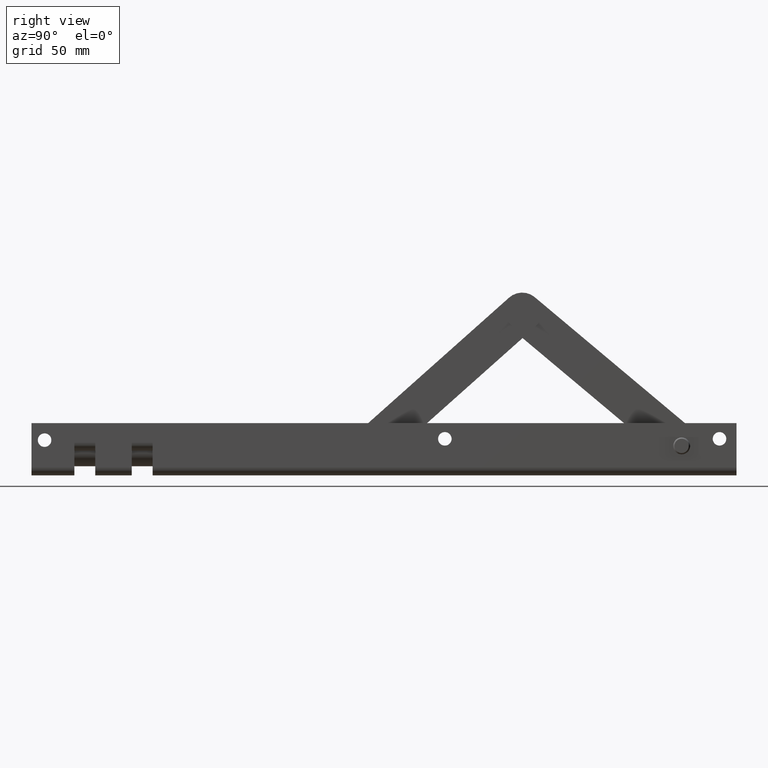
[diagram: clean part render]
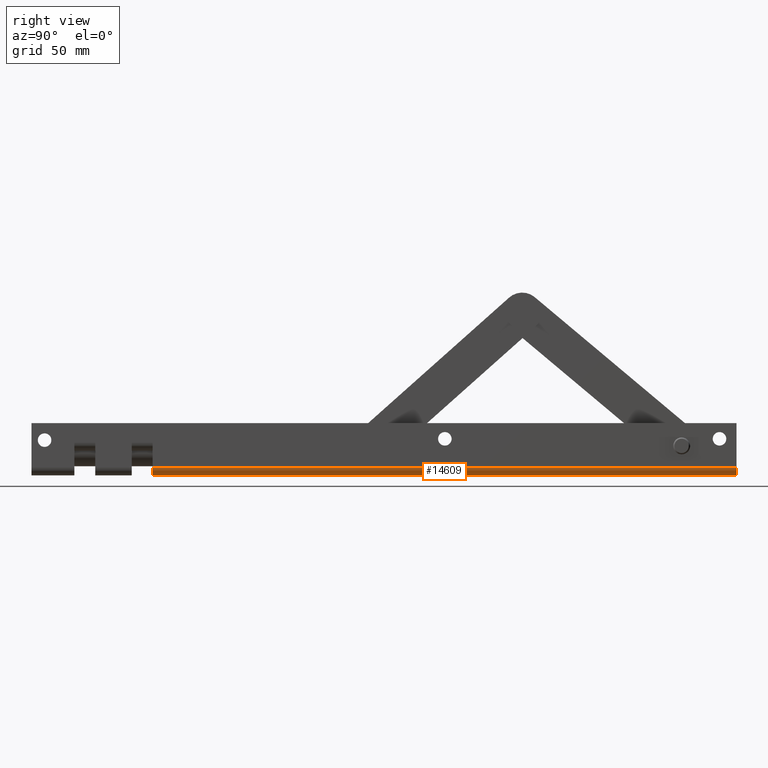
[diagram: same view with one face highlighted and labeled with its STEP entity id]
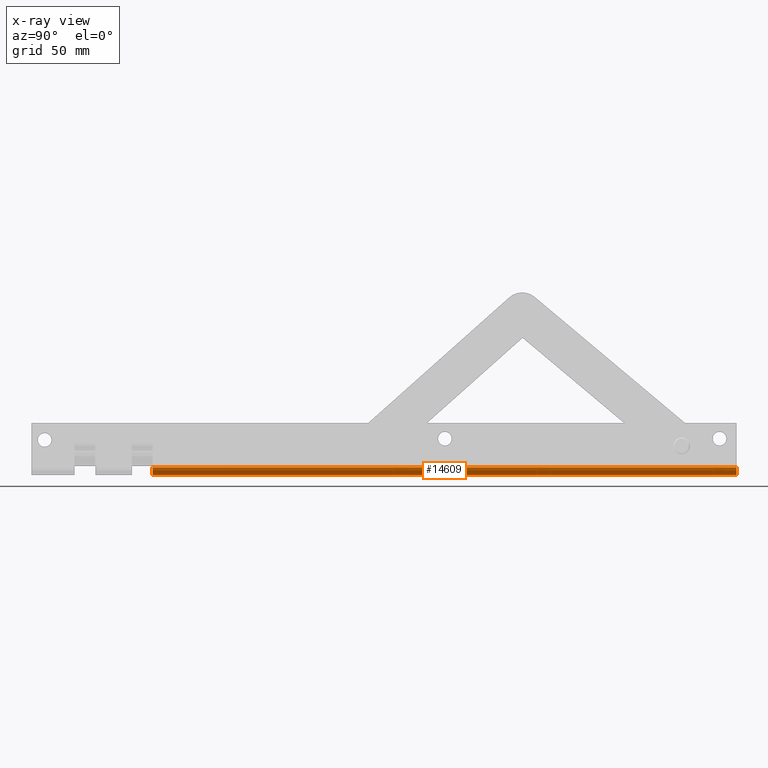
[diagram: x-ray of the same camera — body ghosted, the highlighted face saturated]
A machine part, right view. The second image highlights one B-rep face of the part: STEP entity #14609.
The next image is the same camera in x-ray: the body ghosted, the highlighted face saturated — about 0% of this face is hidden behind the body in this view.
In plain terms, the highlighted cylindrical surface (edge-blend (fillet) strip) has radius 3 mm, axis along (-0, -1, -0).
Its self-contained STEP definition (entity closure, byte-faithful):
#392 = VECTOR ( 'NONE', #7022, 1000.000000000000000 ) ;
#945 = CARTESIAN_POINT ( 'NONE',  ( 9.000000000000001776, 135.0000000000000000, -19.99999999999999645 ) ) ;
#1124 = CARTESIAN_POINT ( 'NONE',  ( 12.00000000000000000, 135.0000000000000000, -16.99999999999999645 ) ) ;
#1712 = ORIENTED_EDGE ( 'NONE', *, *, #10600, .T. ) ;
#2225 = DIRECTION ( 'NONE',  ( 0.000000000000000000, 1.000000000000000000, 0.000000000000000000 ) ) ;
#2803 = ORIENTED_EDGE ( 'NONE', *, *, #7440, .F. ) ;
#3832 = DIRECTION ( 'NONE',  ( 0.000000000000000000, 0.000000000000000000, 1.000000000000000000 ) ) ;
#3920 = VECTOR ( 'NONE', #7854, 1000.000000000000000 ) ;
#4567 = VERTEX_POINT ( 'NONE', #945 ) ;
#4808 = EDGE_CURVE ( 'NONE', #18583, #17064, #19332, .T. ) ;
#5985 = EDGE_CURVE ( 'NONE', #6173, #4567, #18781, .T. ) ;
#6173 = VERTEX_POINT ( 'NONE', #1124 ) ;
#6302 = CARTESIAN_POINT ( 'NONE',  ( 9.000000000000000000, -88.60000000000000853, -16.99999999999999645 ) ) ;
#6635 = LINE ( 'NONE', #21832, #3920 ) ;
#6881 = LINE ( 'NONE', #13395, #392 ) ;
#7022 = DIRECTION ( 'NONE',  ( -0.000000000000000000, -1.000000000000000000, -0.000000000000000000 ) ) ;
#7440 = EDGE_CURVE ( 'NONE', #4567, #17064, #6635, .T. ) ;
#7854 = DIRECTION ( 'NONE',  ( -0.000000000000000000, -1.000000000000000000, -0.000000000000000000 ) ) ;
#8043 = CARTESIAN_POINT ( 'NONE',  ( 11.99999999999999645, -88.60000000000000853, -16.99999999999999645 ) ) ;
#8115 = DIRECTION ( 'NONE',  ( 0.000000000000000000, 1.000000000000000000, -0.000000000000000000 ) ) ;
#9881 = DIRECTION ( 'NONE',  ( -0.000000000000000000, -1.000000000000000000, -0.000000000000000000 ) ) ;
#10600 = EDGE_CURVE ( 'NONE', #6173, #18583, #6881, .T. ) ;
#10773 = CARTESIAN_POINT ( 'NONE',  ( 9.000000000000000000, 135.0000000000000000, -16.99999999999999645 ) ) ;
#12597 = CYLINDRICAL_SURFACE ( 'NONE', #22307, 2.999999999999999112 ) ;
#13395 = CARTESIAN_POINT ( 'NONE',  ( 12.00000000000000000, 135.0000000000000000, -16.99999999999999645 ) ) ;
#14207 = FACE_OUTER_BOUND ( 'NONE', #18788, .T. ) ;
#14450 = AXIS2_PLACEMENT_3D ( 'NONE', #6302, #8115, #15106 ) ;
#14609 = ADVANCED_FACE ( 'NONE', ( #14207 ), #12597, .T. ) ;
#15106 = DIRECTION ( 'NONE',  ( 0.000000000000000000, 0.000000000000000000, 1.000000000000000000 ) ) ;
#16998 = CARTESIAN_POINT ( 'NONE',  ( 9.000000000000000000, 135.0000000000000000, -16.99999999999999645 ) ) ;
#17064 = VERTEX_POINT ( 'NONE', #19073 ) ;
#18156 = ORIENTED_EDGE ( 'NONE', *, *, #5985, .F. ) ;
#18583 = VERTEX_POINT ( 'NONE', #8043 ) ;
#18659 = ORIENTED_EDGE ( 'NONE', *, *, #4808, .T. ) ;
#18781 = CIRCLE ( 'NONE', #20236, 2.999999999999999112 ) ;
#18788 = EDGE_LOOP ( 'NONE', ( #1712, #18659, #2803, #18156 ) ) ;
#19073 = CARTESIAN_POINT ( 'NONE',  ( 8.999999999999998224, -88.59999999999999432, -19.99999999999999645 ) ) ;
#19332 = CIRCLE ( 'NONE', #14450, 2.999999999999999112 ) ;
#20236 = AXIS2_PLACEMENT_3D ( 'NONE', #10773, #2225, #3832 ) ;
#21832 = CARTESIAN_POINT ( 'NONE',  ( 9.000000000000001776, 135.0000000000000000, -19.99999999999999645 ) ) ;
#21944 = DIRECTION ( 'NONE',  ( 0.000000000000000000, 0.000000000000000000, -1.000000000000000000 ) ) ;
#22307 = AXIS2_PLACEMENT_3D ( 'NONE', #16998, #9881, #21944 ) ;